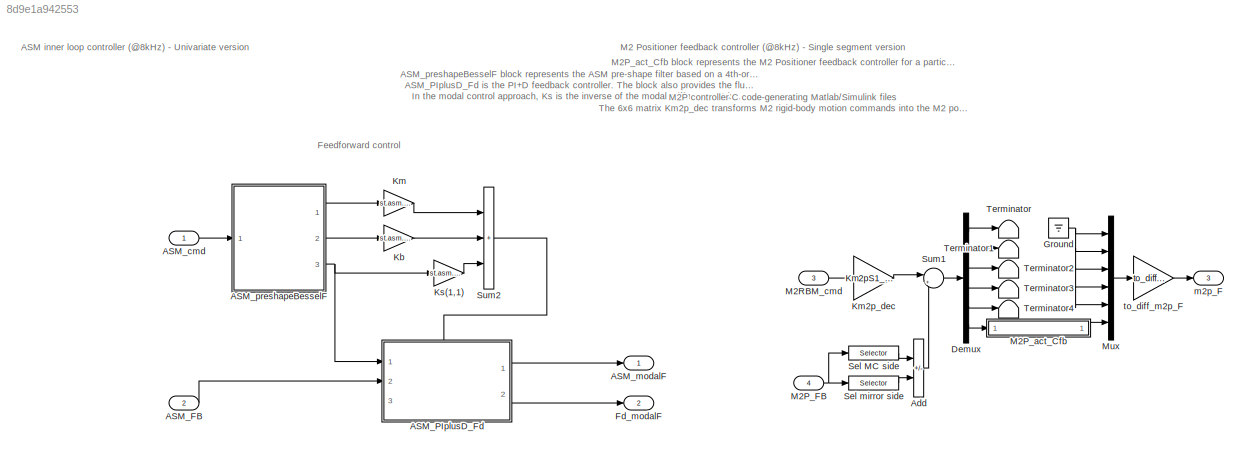
MODEL slx_8d9e1a942553
KIND model
CONFIG AbsTol = auto
CONFIG EnableMultiTasking = on
CONFIG FixedStep = 0.002
CONFIG MaxStep = auto
CONFIG MinStep = auto
CONFIG RelTol = 1e-3
CONFIG SampleTimeConstraint = Unconstrained
CONFIG SolverName = FixedStepAuto
CONFIG StartTime = 0.0
CONFIG StopTime = inf
BLOCK [Inport] ASM_FB
  Port = 2
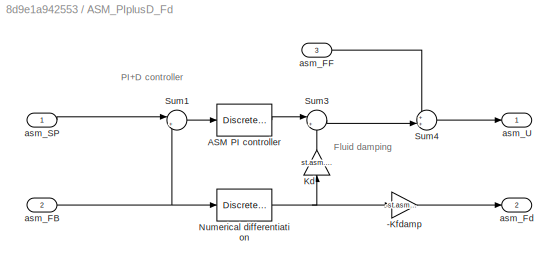
BLOCK [SubSystem] ASM_PIplusD_Fd
  PortSchema = {"entries":[{"content":{"sides":[{"content":{"connectorIds":["In1","In2"]},"type":"ConnectorPlacement.EquallySpacedRectSide","uuid":"706a4ecf-f719-44ad-a306-9c11e57cb316"},{"content":{"connectorIds":["Out1","Out2"],"side":"RIGHT"},"type":"ConnectorPlacement.EquallySpacedRectSide","uuid":"04f8501d-a7a5-4c7b-93f1-e2b34d7c8dac"},{"content":{"connectorIds":["In3"],"side":"TOP"},"type":"ConnectorPlacem...<+402ch>
  Ports = [3, 2]
  RequestExecContextInheritance = off
BLOCK [Gain] ASM_PIplusD_Fd/-Kfdamp
  Gain = -st.asm.Kfd
BLOCK [DiscreteTransferFcn] ASM_PIplusD_Fd/ASM PI controller
  Denominator = Cpi_d.den{1}
  InputPortMap = u0
  Numerator = Cpi_d.num{1}
  Ports = [1, 1]
  SampleTime = Cpi_d.Ts
BLOCK [Gain] ASM_PIplusD_Fd/Kd
  Gain = st.asm.Kd
  NameLocation = left
BLOCK [DiscreteTransferFcn] ASM_PIplusD_Fd/Numerical differentiation
  Denominator = Hpd_d.den{1}
  InputPortMap = u0
  Numerator = Hpd_d.num{1}
  Ports = [1, 1]
  SampleTime = Hpd_d.Ts
BLOCK [Sum] ASM_PIplusD_Fd/Sum1
  Inputs = |+-
  Ports = [2, 1]
BLOCK [Sum] ASM_PIplusD_Fd/Sum3
  Inputs = |+-
  Ports = [2, 1]
BLOCK [Sum] ASM_PIplusD_Fd/Sum4
  Inputs = ++|
  Ports = [2, 1]
BLOCK [Inport] ASM_PIplusD_Fd/asm_FB
  Port = 2
BLOCK [Inport] ASM_PIplusD_Fd/asm_FF
  Port = 3
BLOCK [Outport] ASM_PIplusD_Fd/asm_Fd
  Port = 2
BLOCK [Inport] ASM_PIplusD_Fd/asm_SP
BLOCK [Outport] ASM_PIplusD_Fd/asm_U
BLOCK [Inport] ASM_cmd
  Interpolate = off
BLOCK [Outport] ASM_modalF
  VectorParamsAs1DForOutWhenUnconnected = off
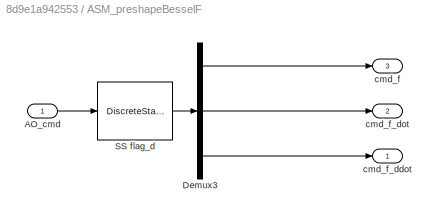
BLOCK [SubSystem] ASM_preshapeBesselF
  Ports = [1, 3]
  RequestExecContextInheritance = off
BLOCK [Inport] ASM_preshapeBesselF/AO_cmd
BLOCK [Demux] ASM_preshapeBesselF/Demux3
  Outputs = 3
  Ports = [1, 3]
BLOCK [DiscreteStateSpace] ASM_preshapeBesselF/SS flag_d
  A = flag_d.A
  B = flag_d.B
  C = flag_d.C
  D = flag_d.D
  SampleTime = flag_d.Ts
BLOCK [Outport] ASM_preshapeBesselF/cmd_f
  Port = 3
BLOCK [Outport] ASM_preshapeBesselF/cmd_f_ddot
BLOCK [Outport] ASM_preshapeBesselF/cmd_f_dot
  Port = 2
BLOCK [Sum] Add
  IconShape = rectangular
  Inputs = +-
  Ports = [2, 1]
BLOCK [Demux] Demux
  Outputs = 6
  Ports = [1, 6]
BLOCK [Outport] Fd_modalF
  Port = 2
  VectorParamsAs1DForOutWhenUnconnected = off
BLOCK [Ground] Ground
BLOCK [Gain] Kb
  Gain = st.asm.Kb
BLOCK [Gain] Km
  Gain = st.asm.Km
  NameLocation = top
BLOCK [Gain] Km2p_dec
  Gain = Km2pS1_dec
  Multiplication = Matrix(K*u) (u vector)
BLOCK [Gain] Ks(1,1)
  Gain = st.asm.Ks
  Multiplication = Matrix(K*u)
BLOCK [Inport] M2P_FB
  Port = 4
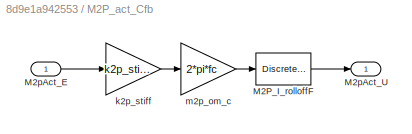
BLOCK [SubSystem] M2P_act_Cfb
  Ports = [1, 1]
  RequestExecContextInheritance = off
BLOCK [DiscreteTransferFcn] M2P_act_Cfb/M2P_I_rolloffF
  Denominator = m2p_Cfb_d.den{1}
  InputPortMap = u0
  Numerator = m2p_Cfb_d.num{1}
  Ports = [1, 1]
  SampleTime = m2p_Cfb_d.Ts
BLOCK [Inport] M2P_act_Cfb/M2pAct_E
BLOCK [Outport] M2P_act_Cfb/M2pAct_U
BLOCK [Gain] M2P_act_Cfb/k2p_stiff
  Gain = k2p_stiff
  NameLocation = top
BLOCK [Gain] M2P_act_Cfb/m2p_om_c
  Gain = 2*pi*fc
  NameLocation = top
BLOCK [Inport] M2RBM_cmd
  Interpolate = off
  Port = 3
BLOCK [Mux] Mux
  DisplayOption = bar
  Inputs = 6
  Ports = [6, 1]
BLOCK [Selector] Sel MC side
  IndexOptions = Index vector (dialog)
  Indices = [1:2:12]
  InputPortWidth = 12
  OutputSizes = 1
  Ports = [1, 1]
BLOCK [Selector] Sel mirror side
  IndexOptions = Index vector (dialog)
  Indices = [2:2:12]
  InputPortWidth = 12
  OutputSizes = 1
  Ports = [1, 1]
BLOCK [Sum] Sum1
  Inputs = |+-
  Ports = [2, 1]
BLOCK [Sum] Sum2
  IconShape = rectangular
  Inputs = +++
  Ports = [3, 1]
BLOCK [Terminator] Terminator
BLOCK [Terminator] Terminator1
BLOCK [Terminator] Terminator2
BLOCK [Terminator] Terminator3
BLOCK [Terminator] Terminator4
BLOCK [Outport] m2p_F
  Port = 3
  VectorParamsAs1DForOutWhenUnconnected = off
BLOCK [Gain] to_diff_m2p_F
  Gain = to_diff_m2p_F
  Multiplication = Matrix(K*u)
ANNOTATION (root): ASM_preshapeBesselF block represents the ASM pre-shape filter based on a 4th-order Bessel filter with a 2200Hz corner frequency. ASM_PIplusD_Fd is the PI+D feedback controller. The block also provides the fluid damping contribution as output asm_Fd . In the modal control approach, Ks is the inverse of the modal stiffness matrix, a square matrix of dimension n_m. Therefore, in that case, Ks(1,1) is...<+20ch>
ANNOTATION (root): M2P_act_Cfb block represents the M2 Positioner feedback controller for a particular hexapod actuator. M2P controller C code-generating Matlab/Simulink files The 6x6 matrix Km2p_dec transforms M2 rigid-body motion commands into the M2 positioner actuator length setpoints.
ANNOTATION (root): ASM inner loop controller (@8kHz) - Univariate version
ANNOTATION (root): Feedforward control
ANNOTATION (root): M2 Positioner feedback controller (@8kHz) - Single segment version
ANNOTATION ASM_PIplusD_Fd: Fluid damping
ANNOTATION ASM_PIplusD_Fd: PI+D controller
LINE ASM_FB:1 -> ASM_PIplusD_Fd:2
LINE ASM_PIplusD_Fd/-Kfdamp:1 -> ASM_PIplusD_Fd/asm_Fd:1
LINE ASM_PIplusD_Fd/ASM PI controller:1 -> ASM_PIplusD_Fd/Sum3:1
LINE ASM_PIplusD_Fd/Kd:1 -> ASM_PIplusD_Fd/Sum3:2
NET ASM_PIplusD_Fd/Numerical differentiation:1 -> ASM_PIplusD_Fd/-Kfdamp:1, ASM_PIplusD_Fd/Kd:1
LINE ASM_PIplusD_Fd/Sum1:1 -> ASM_PIplusD_Fd/ASM PI controller:1
LINE ASM_PIplusD_Fd/Sum3:1 -> ASM_PIplusD_Fd/Sum4:2
LINE ASM_PIplusD_Fd/Sum4:1 -> ASM_PIplusD_Fd/asm_U:1
NET ASM_PIplusD_Fd/asm_FB:1 -> ASM_PIplusD_Fd/Numerical differentiation:1, ASM_PIplusD_Fd/Sum1:2
LINE ASM_PIplusD_Fd/asm_FF:1 -> ASM_PIplusD_Fd/Sum4:1
LINE ASM_PIplusD_Fd/asm_SP:1 -> ASM_PIplusD_Fd/Sum1:1
LINE ASM_PIplusD_Fd:1 -> ASM_modalF:1
LINE ASM_PIplusD_Fd:2 -> Fd_modalF:1
LINE ASM_cmd:1 -> ASM_preshapeBesselF:1
LINE ASM_preshapeBesselF/AO_cmd:1 -> ASM_preshapeBesselF/SS flag_d:1
LINE ASM_preshapeBesselF/Demux3:1 -> ASM_preshapeBesselF/cmd_f:1
LINE ASM_preshapeBesselF/Demux3:2 -> ASM_preshapeBesselF/cmd_f_dot:1
LINE ASM_preshapeBesselF/Demux3:3 -> ASM_preshapeBesselF/cmd_f_ddot:1
LINE ASM_preshapeBesselF/SS flag_d:1 -> ASM_preshapeBesselF/Demux3:1
LINE ASM_preshapeBesselF:1 -> Km:1
LINE ASM_preshapeBesselF:2 -> Kb:1
NET ASM_preshapeBesselF:3 -> ASM_PIplusD_Fd:1, Ks(1,1):1
LINE Add:1 -> Sum1:2
LINE Demux:1 -> Terminator:1
LINE Demux:2 -> Terminator1:1
LINE Demux:3 -> Terminator2:1
LINE Demux:4 -> Terminator3:1
LINE Demux:5 -> Terminator4:1
LINE Demux:6 -> M2P_act_Cfb:1
NET Ground:1 -> Mux:1, Mux:2, Mux:3, Mux:4, Mux:5
LINE Kb:1 -> Sum2:2
LINE Km2p_dec:1 -> Sum1:1
LINE Km:1 -> Sum2:1
LINE Ks(1,1):1 -> Sum2:3
NET M2P_FB:1 -> Sel MC side:1, Sel mirror side:1
LINE M2P_act_Cfb/M2P_I_rolloffF:1 -> M2P_act_Cfb/M2pAct_U:1
LINE M2P_act_Cfb/M2pAct_E:1 -> M2P_act_Cfb/k2p_stiff:1
LINE M2P_act_Cfb/k2p_stiff:1 -> M2P_act_Cfb/m2p_om_c:1
LINE M2P_act_Cfb/m2p_om_c:1 -> M2P_act_Cfb/M2P_I_rolloffF:1
LINE M2P_act_Cfb:1 -> Mux:6
LINE M2RBM_cmd:1 -> Km2p_dec:1
LINE Mux:1 -> to_diff_m2p_F:1
LINE Sel MC side:1 -> Add:1
LINE Sel mirror side:1 -> Add:2
LINE Sum1:1 -> Demux:1
LINE Sum2:1 -> ASM_PIplusD_Fd:3
LINE to_diff_m2p_F:1 -> m2p_F:1
note: NET lines group one-source signal fan-out (src -> all destinations, sorted); 1:1 wires keep LINE
